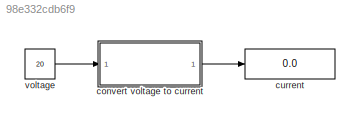
MODEL slx_98e332cdb6f9
KIND model
CONFIG AbsTol = auto
CONFIG EnableMultiTasking = off
CONFIG FixedStep = auto
CONFIG MaxStep = auto
CONFIG MinStep = auto
CONFIG RelTol = 1e-3
CONFIG SampleTimeConstraint = Unconstrained
CONFIG SolverName = VariableStepAuto
CONFIG StartTime = 0.0
CONFIG StopTime = 10.0
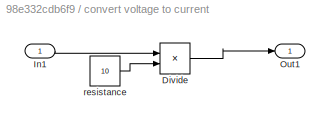
BLOCK [SubSystem] convert voltage to current
  Ports = [1, 1]
  RequestExecContextInheritance = off
BLOCK [Product] convert voltage to current/Divide
  Inputs = */
  Ports = [2, 1]
BLOCK [Inport] convert voltage to current/In1
BLOCK [Outport] convert voltage to current/Out1
BLOCK [Constant] convert voltage to current/resistance
  Value = 10
BLOCK [Display] current
  Decimation = 1
  Ports = [1]
BLOCK [Constant] voltage
  Value = 20
LINE convert voltage to current/Divide:1 -> convert voltage to current/Out1:1
LINE convert voltage to current/In1:1 -> convert voltage to current/Divide:1
LINE convert voltage to current/resistance:1 -> convert voltage to current/Divide:2
LINE convert voltage to current:1 -> current:1
LINE voltage:1 -> convert voltage to current:1
